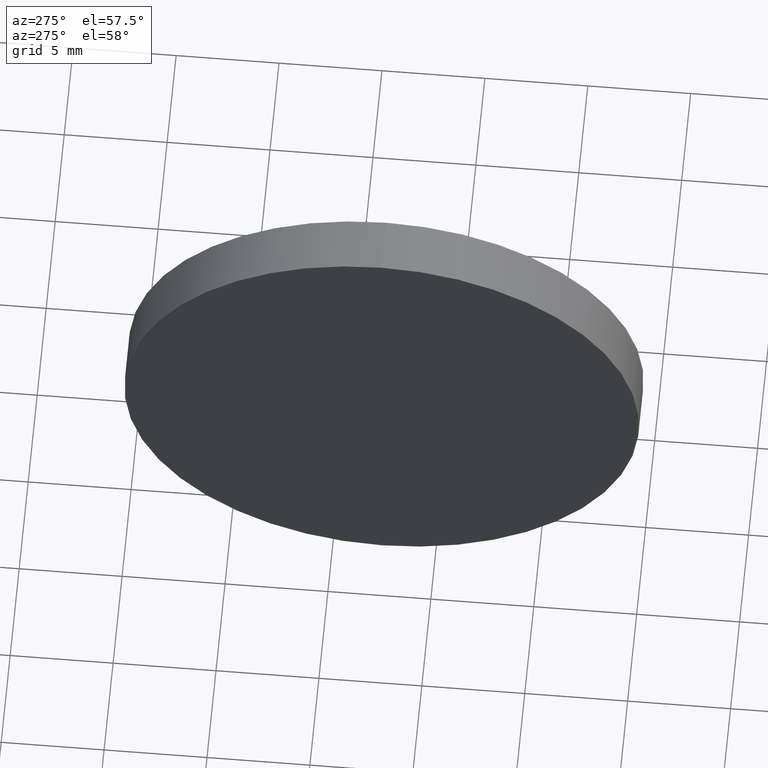
[diagram: clean part render]
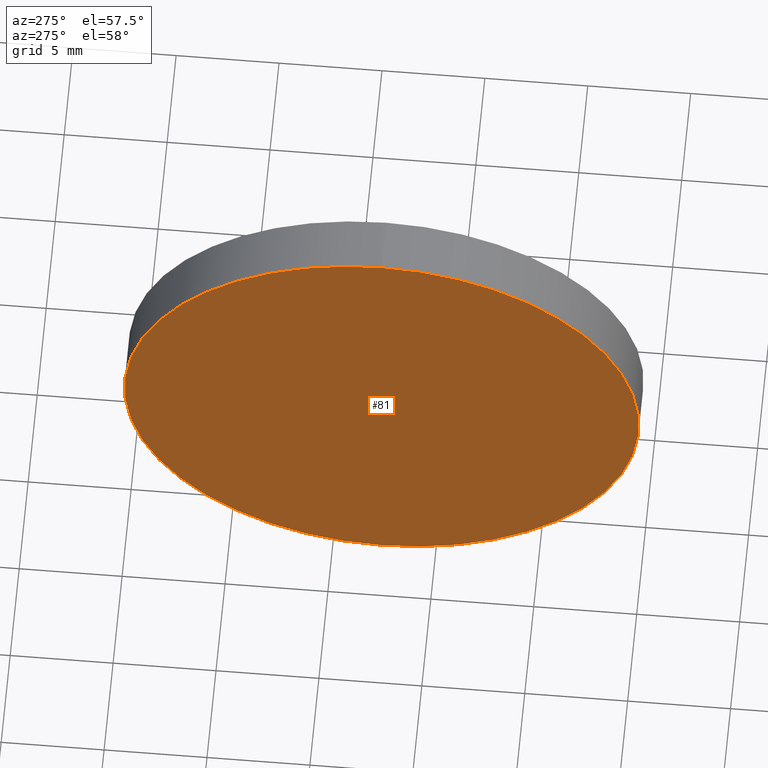
[diagram: same view with one face highlighted and labeled with its STEP entity id]
A machine part, auxiliary view. The second image highlights one B-rep face of the part: STEP entity #81.
In plain terms, the highlighted planar face has unit normal (1, 0, 0).
Its self-contained STEP definition (entity closure, byte-faithful):
#4 = PLANE ( 'NONE',  #71 ) ;
#6 = EDGE_LOOP ( 'NONE', ( #153, #41 ) ) ;
#18 = CARTESIAN_POINT ( 'NONE',  ( 57.53233705252611700, 32.61076812922678400, 0.0000000000000000000 ) ) ;
#33 = DIRECTION ( 'NONE',  ( 1.000000000000000000, 0.0000000000000000000, 0.0000000000000000000 ) ) ;
#38 = DIRECTION ( 'NONE',  ( 0.0000000000000000000, 0.0000000000000000000, 1.000000000000000000 ) ) ;
#41 = ORIENTED_EDGE ( 'NONE', *, *, #70, .T. ) ;
#43 = CARTESIAN_POINT ( 'NONE',  ( 57.53233705252611700, 32.61076812922678400, 0.0000000000000000000 ) ) ;
#46 = DIRECTION ( 'NONE',  ( 0.0000000000000000000, 0.0000000000000000000, -1.000000000000000000 ) ) ;
#52 = CARTESIAN_POINT ( 'NONE',  ( 57.53233705252611700, 32.61076812922678400, 0.0000000000000000000 ) ) ;
#66 = FACE_OUTER_BOUND ( 'NONE', #6, .T. ) ;
#70 = EDGE_CURVE ( 'NONE', #128, #93, #146, .T. ) ;
#71 = AXIS2_PLACEMENT_3D ( 'NONE', #18, #33, #46 ) ;
#79 = AXIS2_PLACEMENT_3D ( 'NONE', #43, #157, #137 ) ;
#81 = ADVANCED_FACE ( 'NONE', ( #66 ), #4, .F. ) ;
#93 = VERTEX_POINT ( 'NONE', #139 ) ;
#97 = CIRCLE ( 'NONE', #110, 12.49999999999999600 ) ;
#110 = AXIS2_PLACEMENT_3D ( 'NONE', #52, #143, #38 ) ;
#121 = CARTESIAN_POINT ( 'NONE',  ( 57.53233705252611700, 32.61076812922678400, -12.49999999999999600 ) ) ;
#128 = VERTEX_POINT ( 'NONE', #121 ) ;
#133 = EDGE_CURVE ( 'NONE', #93, #128, #97, .T. ) ;
#137 = DIRECTION ( 'NONE',  ( 0.0000000000000000000, 0.0000000000000000000, 1.000000000000000000 ) ) ;
#139 = CARTESIAN_POINT ( 'NONE',  ( 57.53233705252611700, 32.61076812922678400, 12.49999999999999600 ) ) ;
#143 = DIRECTION ( 'NONE',  ( -1.000000000000000000, -0.0000000000000000000, -0.0000000000000000000 ) ) ;
#146 = CIRCLE ( 'NONE', #79, 12.49999999999999600 ) ;
#153 = ORIENTED_EDGE ( 'NONE', *, *, #133, .T. ) ;
#157 = DIRECTION ( 'NONE',  ( -1.000000000000000000, -0.0000000000000000000, -0.0000000000000000000 ) ) ;